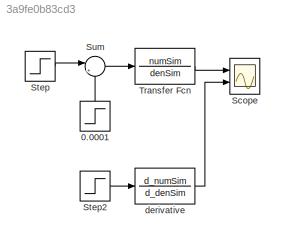
MODEL slx_3a9fe0b83cd3
KIND model
CONFIG AbsTol = auto
CONFIG EnableMultiTasking = off
CONFIG FixedStep = auto
CONFIG MaxStep = auto
CONFIG MinStep = auto
CONFIG RelTol = 1e-3
CONFIG SampleTimeConstraint = Unconstrained
CONFIG SolverName = ode23t
CONFIG StartTime = -0.1
CONFIG StopTime = 0.2
BLOCK [Step] 0.0001
  After = -10000
  NameLocation = right
  SampleTime = 0
  Time = 0.0001
BLOCK [Scope] Scope
  Floating = off
  NumInputPorts = 2
  Ports = [2]
  ScopeSpecificationString = Simulink.scopes.TimeScopeBlockCfg('CurrentConfiguration', extmgr.ConfigurationSet(extmgr.Configuration('Core','General UI',true),extmgr.Configuration('Core','Source UI',true),extmgr.Configuration('Sources','WiredSimulink',true,'SampleTime','0'),extmgr.Configuration('Visuals','Time Domain',true,'SerializedDisplays',{struct('MinYLimReal','-687.70823','MaxYLimReal','1879.95233','YLabelReal','','MinYL...<+1791ch>
BLOCK [Step] Step
  After = 10000
  SampleTime = 0
  Time = 0
BLOCK [Step] Step2
  SampleTime = 0
  Time = 0
BLOCK [Sum] Sum
  Inputs = |++
  Ports = [2, 1]
BLOCK [TransferFcn] Transfer Fcn
  Denominator = denSim
  NameLocation = top
  Numerator = numSim
BLOCK [TransferFcn] derivative
  Denominator = d_denSim
  NameLocation = top
  Numerator = d_numSim
LINE 0.0001:1 -> Sum:2
LINE Step2:1 -> derivative:1
LINE Step:1 -> Sum:1
LINE Sum:1 -> Transfer Fcn:1
LINE Transfer Fcn:1 -> Scope:1
LINE derivative:1 -> Scope:2
